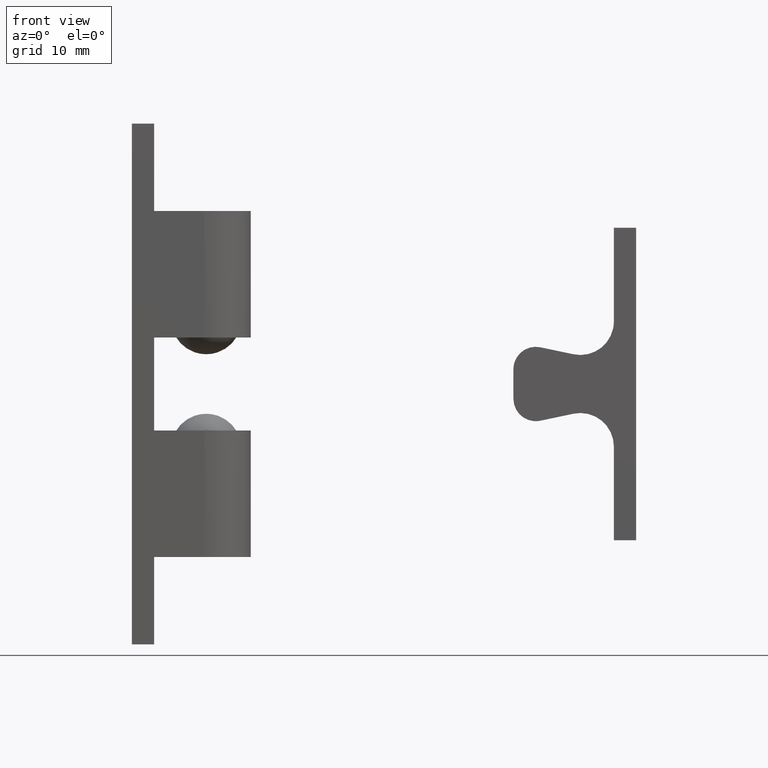
[diagram: clean part render]
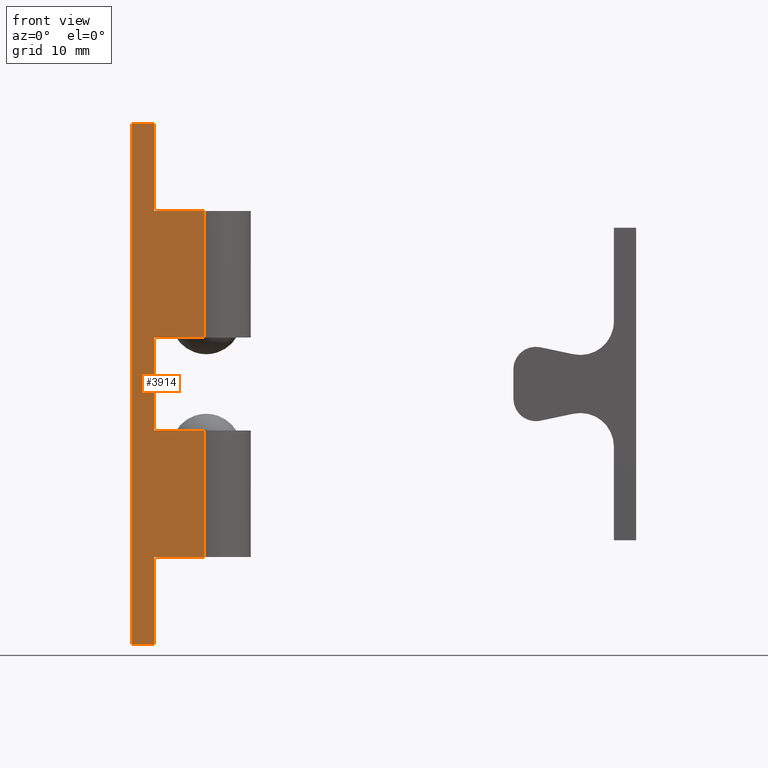
[diagram: same view with one face highlighted and labeled with its STEP entity id]
A machine part, front view. The second image highlights one B-rep face of the part: STEP entity #3914.
In plain terms, the highlighted face is a freeform B-spline surface patch.
Its self-contained STEP definition (entity closure, byte-faithful):
#3715=CARTESIAN_POINT('',(3.0,-6.250000000000000,6.249900000000000));
#3716=VERTEX_POINT('',#3715);
#3722=CARTESIAN_POINT('',(3.0,-6.250000000000000,-6.250000000000000));
#3723=VERTEX_POINT('',#3722);
#3724=CARTESIAN_POINT('',(3.0,-6.250000000000000,6.249900000000000));
#3725=CARTESIAN_POINT('',(3.0,-6.250000000000000,-6.250000000000000));
#3726=QUASI_UNIFORM_CURVE('',1,(#3724,#3725),.UNSPECIFIED.,.F.,.U.);
#3727=EDGE_CURVE('',#3716,#3723,#3726,.T.);
#3744=CARTESIAN_POINT('',(9.750000000000000,-6.250000000000000,-23.250000000000000));
#3745=VERTEX_POINT('',#3744);
#3761=CARTESIAN_POINT('',(3.0,-6.250000000000000,-23.250000000000000));
#3762=VERTEX_POINT('',#3761);
#3763=CARTESIAN_POINT('',(9.750000000000000,-6.250000000000000,-23.250000000000000));
#3764=CARTESIAN_POINT('',(3.0,-6.250000000000000,-23.250000000000000));
#3765=QUASI_UNIFORM_CURVE('',1,(#3763,#3764),.UNSPECIFIED.,.F.,.U.);
#3766=EDGE_CURVE('',#3745,#3762,#3765,.T.);
#3788=CARTESIAN_POINT('',(3.0,-6.250000000000000,-35.0));
#3789=VERTEX_POINT('',#3788);
#3797=CARTESIAN_POINT('',(7.653790E-016,-6.250000000000000,-35.0));
#3798=VERTEX_POINT('',#3797);
#3799=CARTESIAN_POINT('',(7.653790E-016,-6.250000000000000,-35.0));
#3800=CARTESIAN_POINT('',(3.0,-6.250000000000000,-35.0));
#3801=QUASI_UNIFORM_CURVE('',1,(#3799,#3800),.UNSPECIFIED.,.F.,.U.);
#3802=EDGE_CURVE('',#3798,#3789,#3801,.T.);
#3824=CARTESIAN_POINT('',(7.653790E-016,-6.250000000000000,34.999899999999997));
#3825=VERTEX_POINT('',#3824);
#3826=CARTESIAN_POINT('',(3.0,-6.250000000000000,34.999899999999997));
#3827=VERTEX_POINT('',#3826);
#3828=CARTESIAN_POINT('',(7.653790E-016,-6.250000000000000,34.999899999999997));
#3829=CARTESIAN_POINT('',(3.0,-6.250000000000000,34.999899999999997));
#3830=QUASI_UNIFORM_CURVE('',1,(#3828,#3829),.UNSPECIFIED.,.F.,.U.);
#3831=EDGE_CURVE('',#3825,#3827,#3830,.T.);
#3855=CARTESIAN_POINT('',(-0.487012481102607,-6.250000000000000,-38.496494869326611));
#3856=CARTESIAN_POINT('',(-0.487012481102607,-6.250000000000000,38.496396746870239));
#3857=CARTESIAN_POINT('',(10.237012742617990,-6.250000000000000,-38.496494869326611));
#3858=CARTESIAN_POINT('',(10.237012742617990,-6.250000000000000,38.496396746870232));
#3859=B_SPLINE_SURFACE_WITH_KNOTS('',1,1,((#3855,#3857),(#3856,#3858)),.UNSPECIFIED.,.F.,.F.,.U.,(2,2),(2,2),(0.0,76.992891616196857),(0.0,10.724025223720590),.UNSPECIFIED.);
#3860=CARTESIAN_POINT('',(9.750000000000000,-6.250000000000000,6.249900000000000));
#3861=VERTEX_POINT('',#3860);
#3862=CARTESIAN_POINT('',(9.750000000000000,-6.250000000000000,6.249900000000000));
#3863=CARTESIAN_POINT('',(3.0,-6.250000000000000,6.249900000000000));
#3864=QUASI_UNIFORM_CURVE('',1,(#3862,#3863),.UNSPECIFIED.,.F.,.U.);
#3865=EDGE_CURVE('',#3861,#3716,#3864,.T.);
#3866=ORIENTED_EDGE('',*,*,#3865,.F.);
#3867=CARTESIAN_POINT('',(9.750000000000000,-6.250000000000000,23.249900000000000));
#3868=VERTEX_POINT('',#3867);
#3869=CARTESIAN_POINT('',(9.750000000000000,-6.250000000000000,23.249900000000000));
#3870=CARTESIAN_POINT('',(9.750000000000000,-6.250000000000000,6.249900000000000));
#3871=QUASI_UNIFORM_CURVE('',1,(#3869,#3870),.UNSPECIFIED.,.F.,.U.);
#3872=EDGE_CURVE('',#3868,#3861,#3871,.T.);
#3873=ORIENTED_EDGE('',*,*,#3872,.F.);
#3874=CARTESIAN_POINT('',(3.0,-6.250000000000000,23.249900000000000));
#3875=VERTEX_POINT('',#3874);
#3876=CARTESIAN_POINT('',(3.0,-6.250000000000000,23.249900000000000));
#3877=CARTESIAN_POINT('',(9.750000000000000,-6.250000000000000,23.249900000000000));
#3878=QUASI_UNIFORM_CURVE('',1,(#3876,#3877),.UNSPECIFIED.,.F.,.U.);
#3879=EDGE_CURVE('',#3875,#3868,#3878,.T.);
#3880=ORIENTED_EDGE('',*,*,#3879,.F.);
#3881=CARTESIAN_POINT('',(3.0,-6.250000000000000,34.999899999999997));
#3882=CARTESIAN_POINT('',(3.0,-6.250000000000000,23.249900000000000));
#3883=QUASI_UNIFORM_CURVE('',1,(#3881,#3882),.UNSPECIFIED.,.F.,.U.);
#3884=EDGE_CURVE('',#3827,#3875,#3883,.T.);
#3885=ORIENTED_EDGE('',*,*,#3884,.F.);
#3886=ORIENTED_EDGE('',*,*,#3831,.F.);
#3887=CARTESIAN_POINT('',(7.653790E-016,-6.250000000000000,34.999899999999997));
#3888=CARTESIAN_POINT('',(7.653790E-016,-6.250000000000000,-35.0));
#3889=QUASI_UNIFORM_CURVE('',1,(#3887,#3888),.UNSPECIFIED.,.F.,.U.);
#3890=EDGE_CURVE('',#3825,#3798,#3889,.T.);
#3891=ORIENTED_EDGE('',*,*,#3890,.T.);
#3892=ORIENTED_EDGE('',*,*,#3802,.T.);
#3893=CARTESIAN_POINT('',(3.0,-6.250000000000000,-23.250000000000000));
#3894=CARTESIAN_POINT('',(3.0,-6.250000000000000,-35.0));
#3895=QUASI_UNIFORM_CURVE('',1,(#3893,#3894),.UNSPECIFIED.,.F.,.U.);
#3896=EDGE_CURVE('',#3762,#3789,#3895,.T.);
#3897=ORIENTED_EDGE('',*,*,#3896,.F.);
#3898=ORIENTED_EDGE('',*,*,#3766,.F.);
#3899=CARTESIAN_POINT('',(9.750000000000000,-6.250000000000000,-6.250000000000000));
#3900=VERTEX_POINT('',#3899);
#3901=CARTESIAN_POINT('',(9.750000000000000,-6.250000000000000,-6.250000000000000));
#3902=CARTESIAN_POINT('',(9.750000000000000,-6.250000000000000,-23.250000000000000));
#3903=QUASI_UNIFORM_CURVE('',1,(#3901,#3902),.UNSPECIFIED.,.F.,.U.);
#3904=EDGE_CURVE('',#3900,#3745,#3903,.T.);
#3905=ORIENTED_EDGE('',*,*,#3904,.F.);
#3906=CARTESIAN_POINT('',(3.0,-6.250000000000000,-6.250000000000000));
#3907=CARTESIAN_POINT('',(9.750000000000000,-6.250000000000000,-6.250000000000000));
#3908=QUASI_UNIFORM_CURVE('',1,(#3906,#3907),.UNSPECIFIED.,.F.,.U.);
#3909=EDGE_CURVE('',#3723,#3900,#3908,.T.);
#3910=ORIENTED_EDGE('',*,*,#3909,.F.);
#3911=ORIENTED_EDGE('',*,*,#3727,.F.);
#3912=EDGE_LOOP('',(#3866,#3873,#3880,#3885,#3886,#3891,#3892,#3897,#3898,#3905,#3910,#3911));
#3913=FACE_OUTER_BOUND('',#3912,.T.);
#3914=ADVANCED_FACE('',(#3913),#3859,.F.);